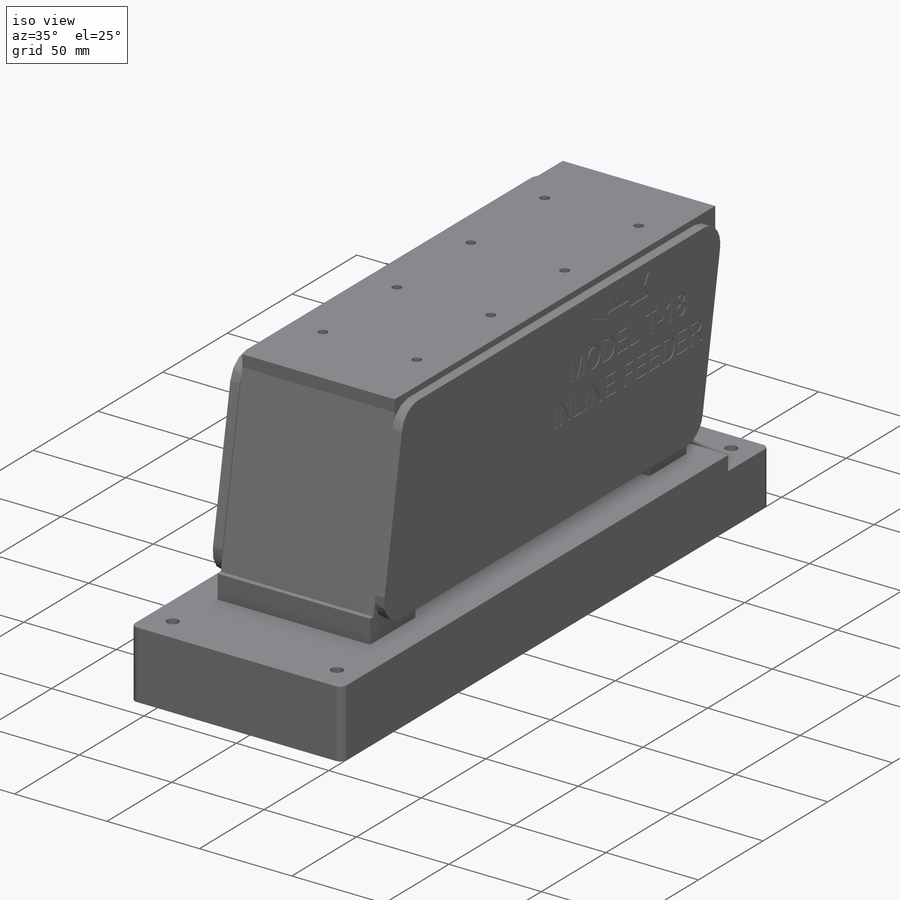
[diagram: iso view]
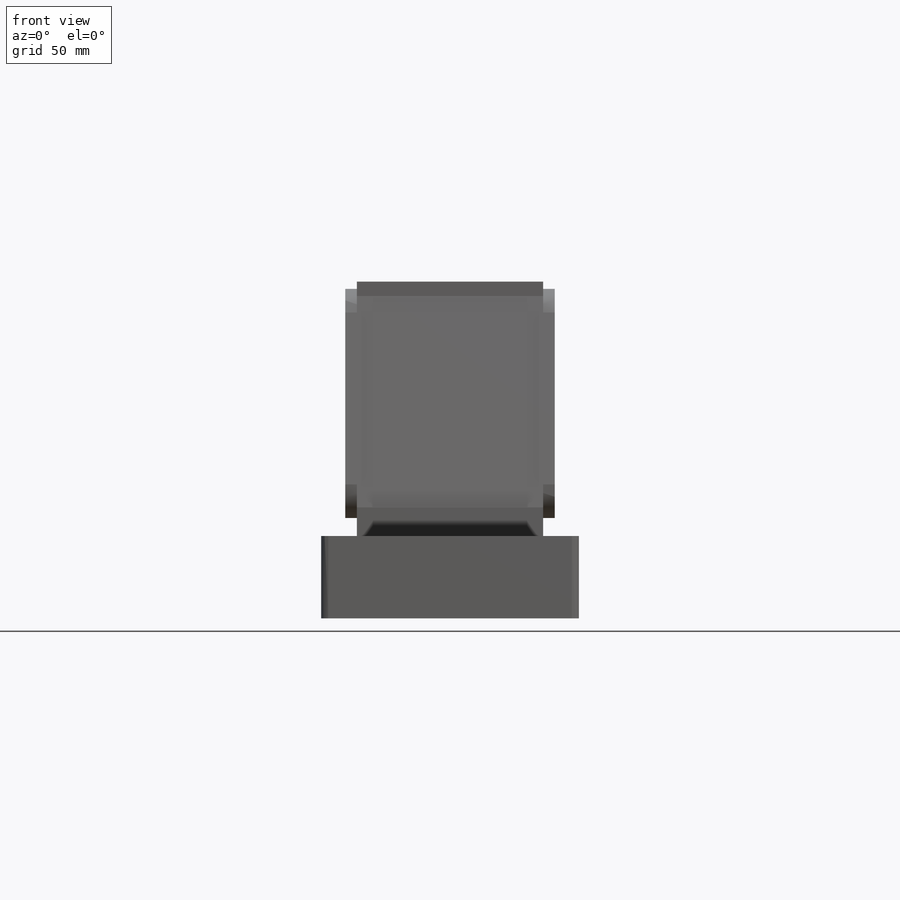
[diagram: front view]
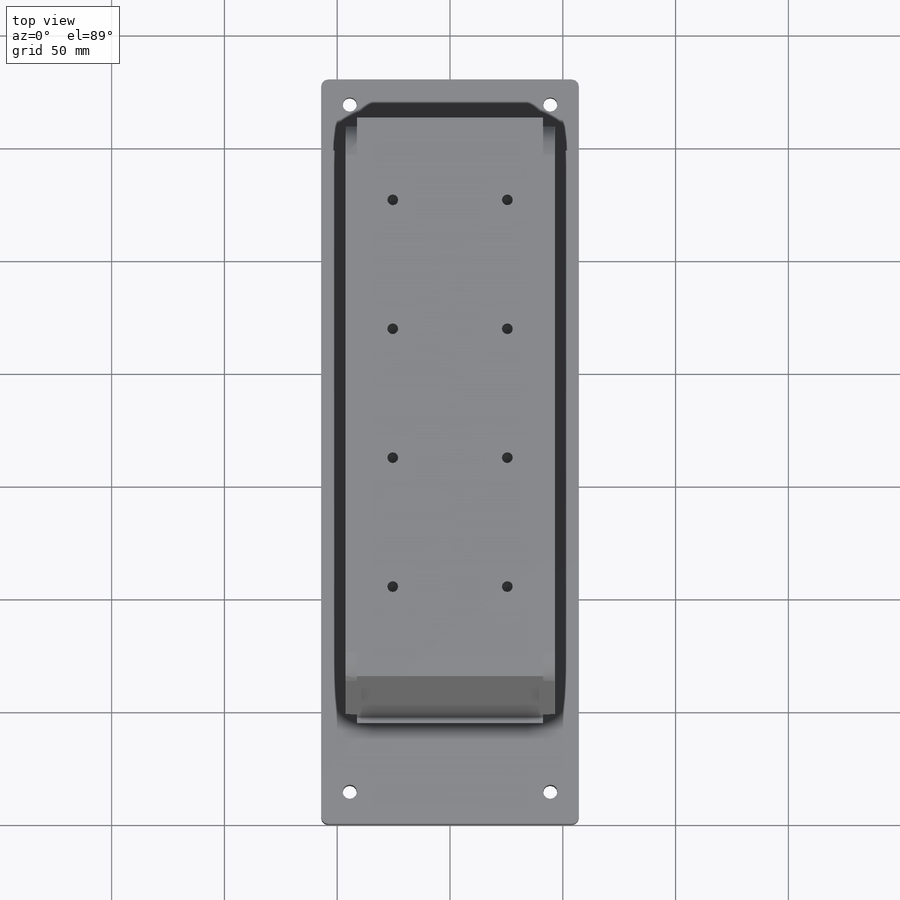
[diagram: top view]
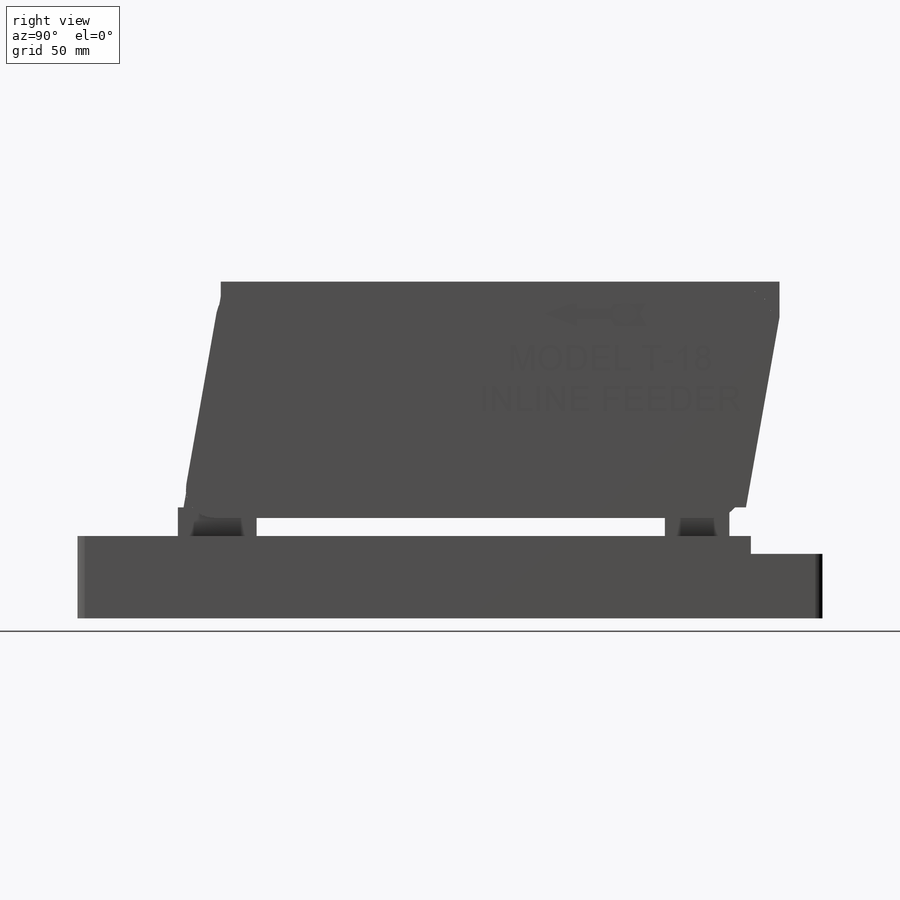
[diagram: right view]
SOLIDWORKS PART (.sldprt)
format: sldprt  version: not decoded by parser v0  size: 906,752 bytes
history: native  units: mm
features: sketch x10, extrude x6, hole x2, material x1, fillet x1, mirror x1, pattern_linear x1, cut_extrude x1 (+12 scaffold rows collapsed)
feature tree (35):
  scaffold x12  (default folders/planes/origin — collapsed)
  material  "Material <not specified>"
  sketch  "Sketch2"  dims[D1=330.2mm D2=36.5125mm D3=31.75mm D4=7.9375mm]
  extrude  "Extrude1"  Depth=114.3mm
  sketch  "Sketch4"  dims[D1=82.55mm D2=34.925mm D3=41.275mm D4=44.45mm]
  extrude  "Extrude2"  Depth=12.7mm
  sketch  "Sketch8"
  extrude  "param"  Depth=28.575mm
  extrude  "Extrude4"  Depth=12.7mm
  hole  "1/4-20 Tapped Hole1"  Diameter=6.35mm Depth=36.5125mm
  sketch  "Sketch10"  dims[D1=14.2875mm D2=304.8mm D3=44.45mm D4=88.9mm]
  sketch  "Sketch9"  dims[hole-wizard template sketch: 60 standard entries collapsed; hole parameters kept: c18.Thru Tap Drill Depth=36.5125mm]
  fillet  "Fillet1"  Radius=3.175mm
  sketch  "Sketch11"  dims[c1.D1=19.05mm c1.D2=63.5mm c1.D3=15.875mm c1.D4=6.35mm c1.D5=247.65mm c1.D6=149.2504mm c1.D7=15.875mm c2.D7=10.0deg]
  extrude  "Extrude5"  [1 undecoded]
  sketch  "Sketch12"  dims[D5=12.7mm D1=101.6mm D2=242.8875mm D3=3.175mm D4=3.2258mm]
  extrude  "Extrude6"  Depth=5.159375mm
  mirror  "Mirror1"
  hole  "#10-32 Tapped Hole1"  Diameter=4.0386mm Depth=13.6144mm
  sketch  "Sketch14"  dims[D1=36.5125mm D2=50.8mm D3=25.4mm]
  sketch  "Sketch13"  dims[hole-wizard template sketch: 28 standard entries collapsed; hole parameters kept: c8.Tap Drill Dia.=4.0386mm c8.Tap Drill Depth=13.6144mm c8.Thread Major Dia.=4.826mm c8.Thread Depth=9.652mm c8.D5=~14.816244mm c8.Drill Angle=118.0deg]
  pattern_linear  "LPattern1"  Count1=4 Count2=1 Spacing1=57.15mm Spacing2=50mm
  sketch  "Sketch15"  dims[D1=15.0876mm D2=4.7625mm D3=11.1125mm D4=14.2875mm D5=1.8034mm D6=~3.179153mm D7=45.466mm D8=5.5626mm D9=58.6994mm]
  cut_extrude  "Cut-Extrude1"  Depth=0.396875mm
decode coverage: 19 of 22 modeling features carry decoded parameters
note: ~ marks probable driven/reference dimensions
note: 1 parameter value undecoded
note: suppression state not decoded; provenance and decode notes live in map.json
